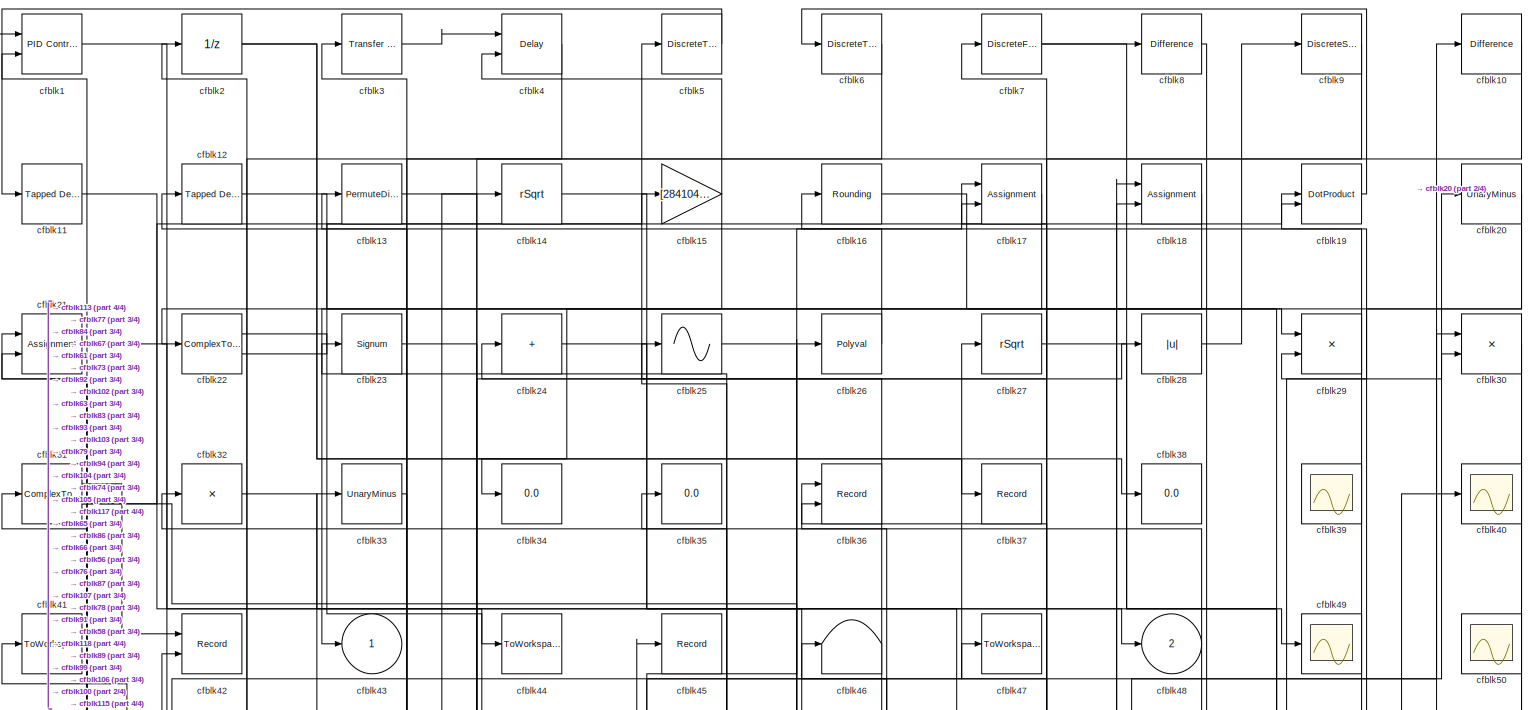
[diagram: root canvas - part 1/4, full width, top band]
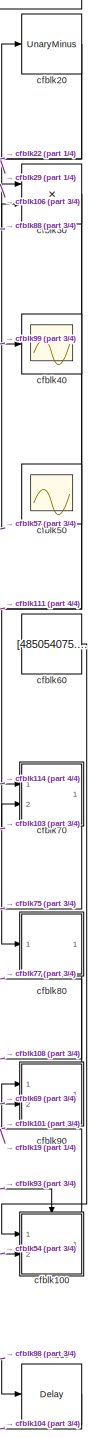
[diagram: root canvas - part 2/4, right side, full height]
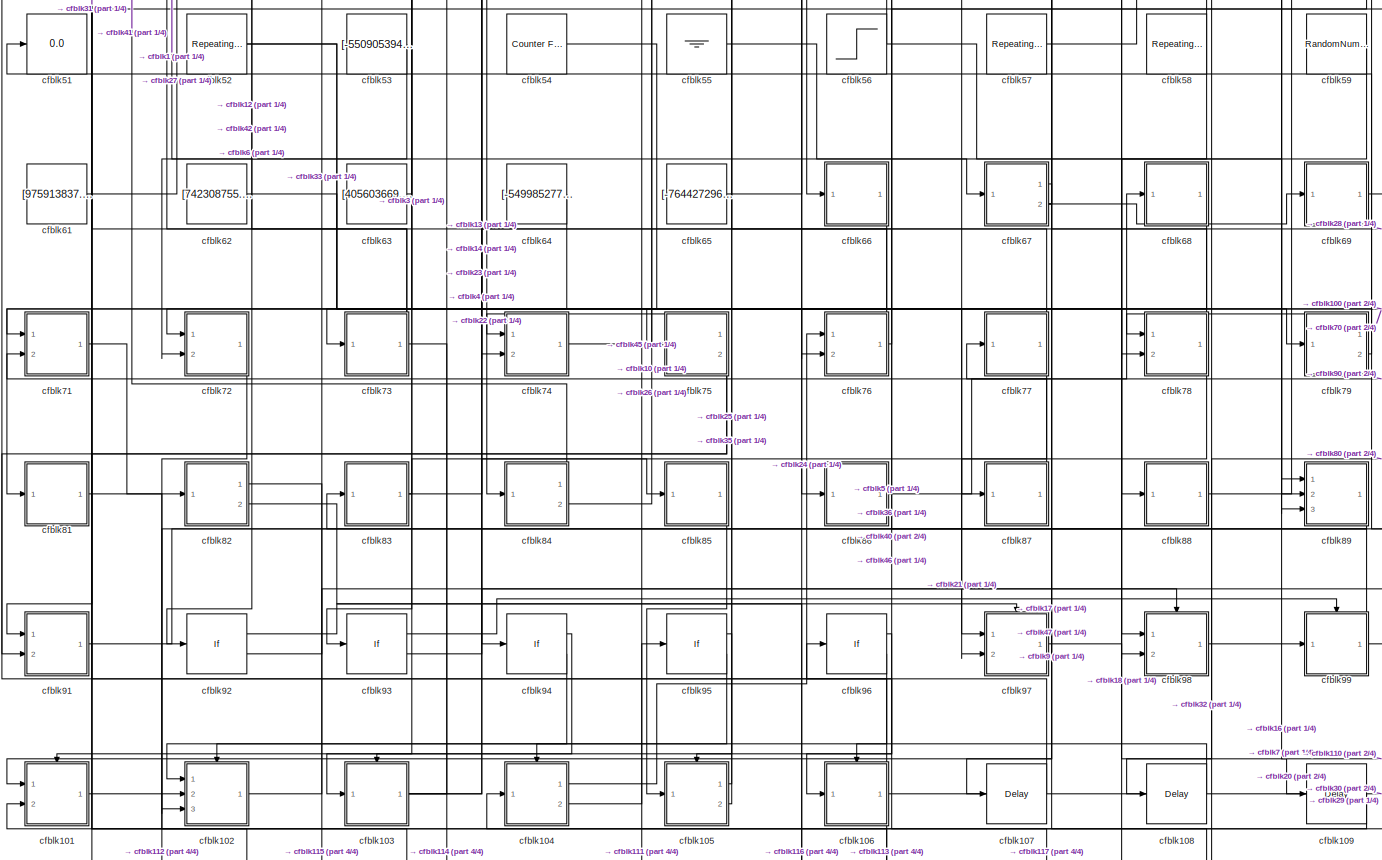
[diagram: root canvas - part 3/4, full width, bottom band]
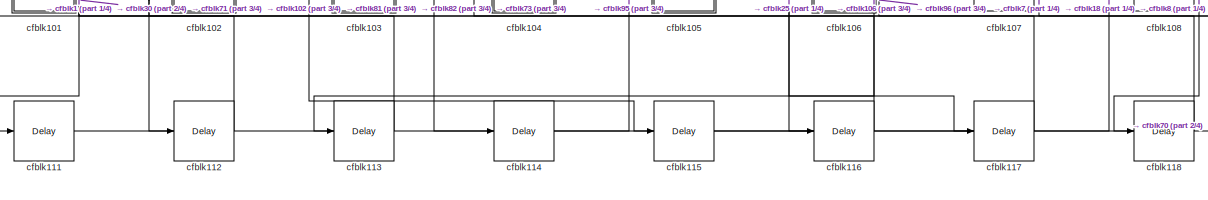
[diagram: root canvas - part 4/4, full width, bottom band]
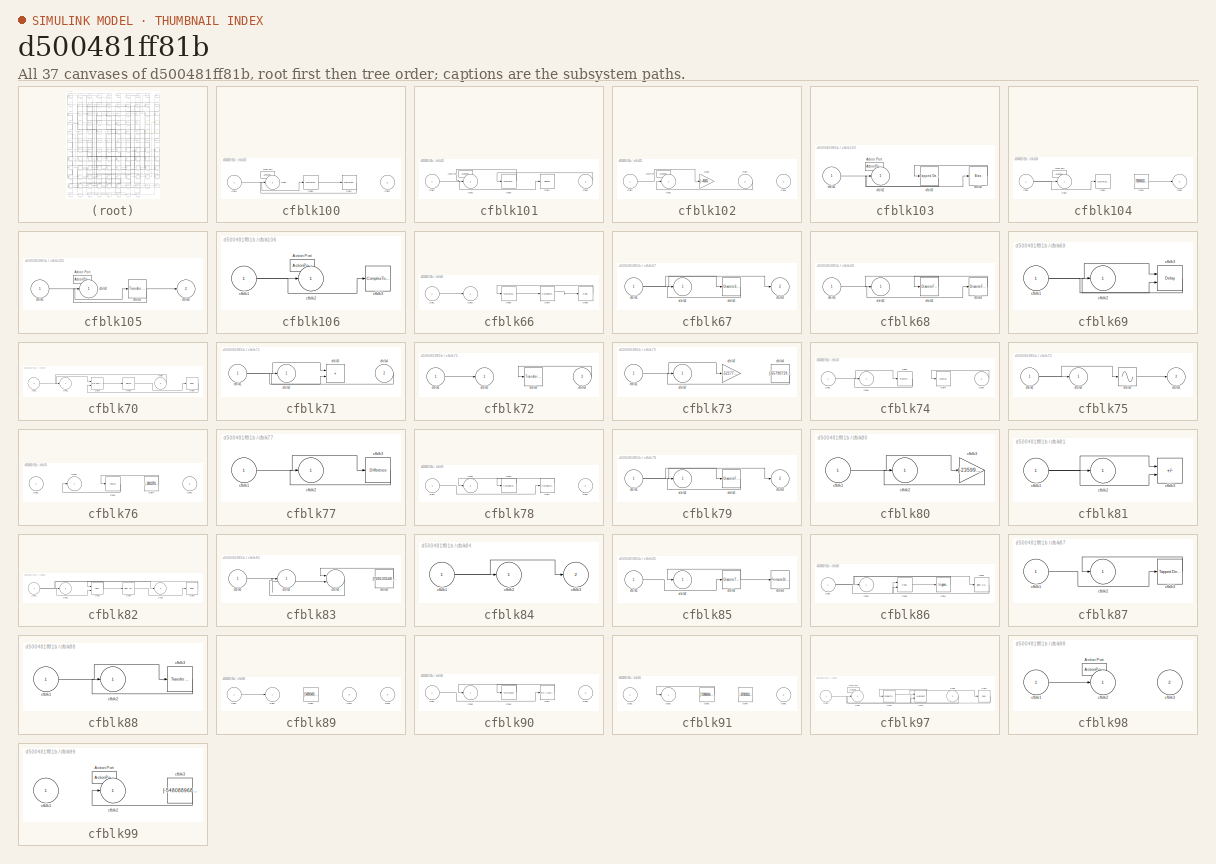
[diagram: thumbnail index - all 37 canvases of the model, root first then tree order]
MODEL slx_d500481ff81b
KIND model
CONFIG AbsTol = auto
CONFIG EnableMultiTasking = off
CONFIG FixedStep = auto
CONFIG MaxStep = auto
CONFIG MinStep = auto
CONFIG RelTol = 1e-3
CONFIG SampleTimeConstraint = Unconstrained
CONFIG SolverName = VariableStepAuto
CONFIG StartTime = 0.0
CONFIG StopTime = 10.0
BLOCK [Reference] cfblk1  REF=slpidlib/PID Controller (2DOF)
  Ports = [2, 1]
  SourceBlock = slpidlib/PID Controller (2DOF)
  SourceProductBaseCode = SL
  SourceType = PID 2dof
BLOCK [Reference] cfblk10  REF=simulink/Discrete/Difference
  Ports = [1, 1]
  SourceBlock = simulink/Discrete/Difference
  SourceProductBaseCode = SL
  SourceType = Difference
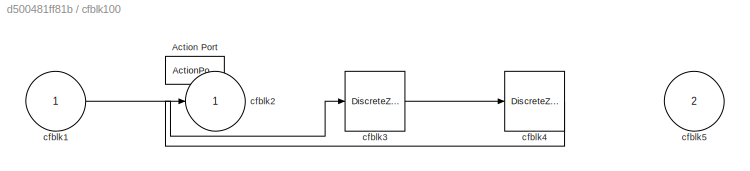
BLOCK [SubSystem] cfblk100
  Ports = [2, 1, 0, 0, 0, 0, 0, 1]
  RequestExecContextInheritance = off
  TreatAsAtomicUnit = on
BLOCK [ActionPort] cfblk100/Action Port
  ActionPortLabel = else
BLOCK [Inport] cfblk100/cfblk1
BLOCK [Outport] cfblk100/cfblk2
BLOCK [DiscreteZeroPole] cfblk100/cfblk3
  Gain = 1
  Poles = [0 0.5]
  SampleTime = -1
BLOCK [DiscreteZeroPole] cfblk100/cfblk4
  Gain = 1
  Poles = [0 0.5]
  SampleTime = -1
BLOCK [Inport] cfblk100/cfblk5
  Port = 2
BLOCK [SubSystem] cfblk101
  Ports = [2, 1, 0, 0, 0, 0, 0, 1]
  RequestExecContextInheritance = off
  TreatAsAtomicUnit = on
BLOCK [ActionPort] cfblk101/Action Port
  ActionPortLabel = if(u1 >= 0)
BLOCK [Inport] cfblk101/cfblk1
BLOCK [Outport] cfblk101/cfblk2
BLOCK [DiscreteIntegrator] cfblk101/cfblk3
  ICPrevOutput = DiscIntNeverNeededParam
  ICPrevScaledInput = DiscIntNeverNeededParam
  InitialConditionSetting = Auto
  Ports = [1, 1]
  SampleTime = -1
BLOCK [Signum] cfblk101/cfblk4
BLOCK [Inport] cfblk101/cfblk5
  Port = 2
BLOCK [SubSystem] cfblk102
  Ports = [3, 1, 0, 0, 0, 0, 0, 1]
  RequestExecContextInheritance = off
  TreatAsAtomicUnit = on
BLOCK [ActionPort] cfblk102/Action Port
  ActionPortLabel = else
BLOCK [Inport] cfblk102/cfblk1
BLOCK [Outport] cfblk102/cfblk2
BLOCK [Gain] cfblk102/cfblk3
  Gain = [-450032646.228763]
BLOCK [Inport] cfblk102/cfblk4
  Port = 2
BLOCK [Inport] cfblk102/cfblk5
  Port = 3
BLOCK [SubSystem] cfblk103
  Ports = [1, 1, 0, 0, 0, 0, 0, 1]
  RequestExecContextInheritance = off
  TreatAsAtomicUnit = on
BLOCK [ActionPort] cfblk103/Action Port
  ActionPortLabel = if(u1 >= 0)
BLOCK [Inport] cfblk103/cfblk1
BLOCK [Outport] cfblk103/cfblk2
BLOCK [Reference] cfblk103/cfblk3  REF=simulink/Discrete/Tapped Delay
  Ports = [1, 1]
  SourceBlock = simulink/Discrete/Tapped Delay
  SourceProductBaseCode = SL
  SourceType = Tapped Delay Line
BLOCK [Bias] cfblk103/cfblk4
  Bias = [661816639.716293]
  SaturateOnIntegerOverflow = off
BLOCK [SubSystem] cfblk104
  Ports = [1, 2, 0, 0, 0, 0, 0, 1]
  RequestExecContextInheritance = off
  TreatAsAtomicUnit = on
BLOCK [ActionPort] cfblk104/Action Port
  ActionPortLabel = else
BLOCK [Inport] cfblk104/cfblk1
BLOCK [Outport] cfblk104/cfblk2
BLOCK [DiscreteZeroPole] cfblk104/cfblk3
  Gain = 1
  Poles = [0 0.5]
  SampleTime = -1
BLOCK [Constant] cfblk104/cfblk4
  SampleTime = 1
  Value = [792065615.288515]
BLOCK [Outport] cfblk104/cfblk5
  Port = 2
BLOCK [SubSystem] cfblk105
  Ports = [1, 2, 0, 0, 0, 0, 0, 1]
  RequestExecContextInheritance = off
  TreatAsAtomicUnit = on
BLOCK [ActionPort] cfblk105/Action Port
  ActionPortLabel = if(u1 >= 0)
BLOCK [Inport] cfblk105/cfblk1
BLOCK [Outport] cfblk105/cfblk2
BLOCK [Reference] cfblk105/cfblk3  REF=simulink/Discrete/Transfer Fcn
First Order
  Ports = [1, 1]
  SourceBlock = simulink/Discrete/Transfer Fcn\nFirst Order
  SourceProductBaseCode = SL
  SourceType = First Order Transfer Fcn
BLOCK [Outport] cfblk105/cfblk4
  Port = 2
BLOCK [SubSystem] cfblk106
  Ports = [1, 1, 0, 0, 0, 0, 0, 1]
  RequestExecContextInheritance = off
  TreatAsAtomicUnit = on
BLOCK [ActionPort] cfblk106/Action Port
  ActionPortLabel = else
BLOCK [Inport] cfblk106/cfblk1
BLOCK [Outport] cfblk106/cfblk2
BLOCK [ComplexToMagnitudeAngle] cfblk106/cfblk3
  Ports = [1, 2]
BLOCK [Delay] cfblk107
  InputPortMap = u0
  Ports = [1, 1]
  SampleTime = 1
BLOCK [Delay] cfblk108
  InputPortMap = u0
  Ports = [1, 1]
  SampleTime = 1
BLOCK [Delay] cfblk109
  InputPortMap = u0
  Ports = [1, 1]
  SampleTime = 1
BLOCK [Reference] cfblk11  REF=simulink/Discrete/Tapped Delay
  Ports = [1, 1]
  SourceBlock = simulink/Discrete/Tapped Delay
  SourceProductBaseCode = SL
  SourceType = Tapped Delay Line
BLOCK [Delay] cfblk110
  InputPortMap = u0
  Ports = [1, 1]
  SampleTime = 1
BLOCK [Delay] cfblk111
  InputPortMap = u0
  Ports = [1, 1]
  SampleTime = 1
BLOCK [Delay] cfblk112
  InputPortMap = u0
  Ports = [1, 1]
  SampleTime = 1
BLOCK [Delay] cfblk113
  InputPortMap = u0
  Ports = [1, 1]
  SampleTime = 1
BLOCK [Delay] cfblk114
  InputPortMap = u0
  Ports = [1, 1]
  SampleTime = 1
BLOCK [Delay] cfblk115
  InputPortMap = u0
  Ports = [1, 1]
  SampleTime = 1
BLOCK [Delay] cfblk116
  InputPortMap = u0
  Ports = [1, 1]
  SampleTime = 1
BLOCK [Delay] cfblk117
  InputPortMap = u0
  Ports = [1, 1]
  SampleTime = 1
BLOCK [Delay] cfblk118
  InputPortMap = u0
  Ports = [1, 1]
  SampleTime = 1
BLOCK [Reference] cfblk12  REF=simulink/Discrete/Tapped Delay
  Ports = [1, 1]
  SourceBlock = simulink/Discrete/Tapped Delay
  SourceProductBaseCode = SL
  SourceType = Tapped Delay Line
BLOCK [PermuteDimensions] cfblk13
BLOCK [Sqrt] cfblk14
  AlgorithmType = Newton-Raphson
  Operator = rSqrt
BLOCK [Gain] cfblk15
  Gain = [28410411.029023]
BLOCK [Rounding] cfblk16
BLOCK [Assignment] cfblk17
  DiagnosticForDimensions = Warning
  IndexOptions = Index vector (dialog)
  Indices = 1
  OutputSizes = 1
  Ports = [2, 1]
BLOCK [Assignment] cfblk18
  DiagnosticForDimensions = Warning
  IndexOptions = Index vector (dialog)
  Indices = 1
  OutputSizes = 1
  Ports = [2, 1]
BLOCK [DotProduct] cfblk19
  OutDataTypeStr = Inherit: Inherit via internal rule
BLOCK [UnitDelay] cfblk2
  HasFrameUpgradeWarning = on
BLOCK [UnaryMinus] cfblk20
BLOCK [Assignment] cfblk21
  DiagnosticForDimensions = Warning
  IndexOptions = Index vector (dialog)
  Indices = 1
  OutputSizes = 1
  Ports = [2, 1]
BLOCK [ComplexToRealImag] cfblk22
  Ports = [1, 2]
BLOCK [Signum] cfblk23
BLOCK [Sum] cfblk24
  IconShape = rectangular
  Inputs = +
  Ports = [1, 1]
BLOCK [Sin] cfblk25
  Ports = [1, 1]
  SampleTime = 0
  TimeSource = Use external signal
BLOCK [Polyval] cfblk26
  Coefs = [ +2.081618890e-019, -1.441693666e-014, +4.719686976e-010, -8.536869453e-006, +1.621573104e-001, -8.087801117e+001 ]
BLOCK [Sqrt] cfblk27
  AlgorithmType = Newton-Raphson
  Operator = rSqrt
BLOCK [Abs] cfblk28
  SaturateOnIntegerOverflow = off
BLOCK [Product] cfblk29
  Inputs = **
  Ports = [2, 1]
BLOCK [Reference] cfblk3  REF=simulink/Discrete/Transfer Fcn
Real Zero
  Ports = [1, 1]
  SourceBlock = simulink/Discrete/Transfer Fcn\nReal Zero
  SourceProductBaseCode = SL
  SourceType = Transfer Fcn Real Zero
BLOCK [Product] cfblk30
  Ports = [2, 1]
BLOCK [ComplexToRealImag] cfblk31
  Ports = [1, 2]
BLOCK [Product] cfblk32
  Inputs = *
  Ports = [1, 1]
BLOCK [UnaryMinus] cfblk33
BLOCK [Display] cfblk34
  Decimation = 1
  Ports = [1]
BLOCK [Display] cfblk35
  Decimation = 1
  Ports = [1]
BLOCK [Record] cfblk36
  CompatibilityTag = XY
  FileSettingsInternal = {"entries":[{"content":{"excelSettings":{"content":{},"type":"Streamout.ExcelSettings"}},"type":"Streamout.FileSettingStorage","uuid":"dc4603f7-060f-47ee-a389-6b2f5d8eacf3"}],"packageUris":["http://schema.mathworks.com/mf0/streamout_blocks/R2020a"],"version":"1.0"}
  Layout = [1 1]
  Ports = [2]
  SignalsInternal = {"entries":[{"content":{"signals":[{"content":{"blockPath":["sampleModel135/cfblk36"],"channel":[],"dimensions":[1],"domain":"sampleModel135/cfblk36","lineColor":"#a2142f","plots":[1],"port":1,"sid":[""],"signalID":4712,"signalName":"cfblk76"},"type":"RecordBlkView.Signal","uuid":"88f8ffe8-7962-43a1-8896-d692d2f87f4c"},{"content":{"blockPath":["sampleModel135/cfblk36"],"channel":[],"dimensions":[1...<+385ch>
  VisualizationBindings = {"xyplotplugin":{"info":[{"series":[{"bindingParametersList":[{"parameter":"X-Axis","signalID":4712,"signalName":"cfblk76"},{"parameter":"Y-Axis","signalID":4716,"signalName":"cfblk67:2"}],"seriesID":6412}],"subplotID":1}]}}
BLOCK [Record] cfblk37
  FileSettingsInternal = {"entries":[{"content":{"excelSettings":{"content":{},"type":"Streamout.ExcelSettings"}},"type":"Streamout.FileSettingStorage","uuid":"5de6cc85-0c80-4659-8aff-d8a8f7568a02"}],"packageUris":["http://schema.mathworks.com/mf0/streamout_blocks/R2020a"],"version":"1.0"}
  Ports = [1]
  SignalsInternal = {"entries":[{"content":{"signals":[{"content":{"blockPath":["sampleModel135/cfblk37"],"channel":[],"dimensions":[1],"domain":"sampleModel135/cfblk37","lineColor":"#a2142f","plots":[1],"port":1,"sid":[""],"signalID":4720,"signalName":"cfblk2"},"type":"RecordBlkView.Signal","uuid":"9ad653bb-3f93-4fe3-8d88-ee341a26a170"}]},"type":"RecordBlkView.InputSignals","uuid":"e2ea3720-dc8c-4658-944f-b29d6f1fb9...<+96ch>
  VisualizationBindings = {"sparklinesplugin":{"info":[{"bindingParametersList":[],"subplotID":1}]}}
BLOCK [Display] cfblk38
  Decimation = 1
  Ports = [1]
BLOCK [Scope] cfblk39
  Floating = on
  NumInputPorts = 1
  Ports = []
BLOCK [Delay] cfblk4
  InputPortMap = u0,e6
  Ports = [2, 1]
  SampleTime = 1
  ShowEnablePort = on
BLOCK [Scope] cfblk40
  Floating = off
  NumInputPorts = 1
  Ports = [1]
BLOCK [ToWorkspace] cfblk41
  FixptAsFi = on
  MaxDataPoints = inf
  Ports = [1]
  SampleTime = -1
  SaveFormat = Timeseries
  VariableName = rmtcdss
BLOCK [Record] cfblk42
  CompatibilityTag = XY
  FileSettingsInternal = {"entries":[{"content":{"excelSettings":{"content":{},"type":"Streamout.ExcelSettings"}},"type":"Streamout.FileSettingStorage","uuid":"3a613f90-b4b9-4c61-961a-fdb05aa120f1"}],"packageUris":["http://schema.mathworks.com/mf0/streamout_blocks/R2020a"],"version":"1.0"}
  Layout = [1 1]
  Ports = [2]
  SignalsInternal = {"entries":[{"content":{"signals":[{"content":{"blockPath":["sampleModel135/cfblk42"],"channel":[],"dimensions":[1],"domain":"sampleModel135/cfblk42","lineColor":"#a2142f","plots":[1],"port":1,"sid":[""],"signalID":4724,"signalName":"cfblk31:1"},"type":"RecordBlkView.Signal","uuid":"ce349fb7-b3a0-4447-98f3-427877e07b8c"},{"content":{"blockPath":["sampleModel135/cfblk42"],"channel":[],"dimensions":...<+385ch>
  VisualizationBindings = {"xyplotplugin":{"info":[{"series":[{"bindingParametersList":[{"parameter":"X-Axis","signalID":4724,"signalName":"cfblk31:1"},{"parameter":"Y-Axis","signalID":4728,"signalName":"cfblk73"}],"seriesID":39813}],"subplotID":1}]}}
BLOCK [Outport] cfblk43
BLOCK [ToWorkspace] cfblk44
  FixptAsFi = on
  MaxDataPoints = inf
  Ports = [1]
  SampleTime = -1
  SaveFormat = Timeseries
  VariableName = wimrcuv
BLOCK [Record] cfblk45
  FileSettingsInternal = {"entries":[{"content":{"excelSettings":{"content":{},"type":"Streamout.ExcelSettings"}},"type":"Streamout.FileSettingStorage","uuid":"b06d5a54-4607-4223-bf0d-fc84dbd604d8"}],"packageUris":["http://schema.mathworks.com/mf0/streamout_blocks/R2020a"],"version":"1.0"}
  Ports = [1]
  SignalsInternal = {"entries":[{"content":{"signals":[{"content":{"blockPath":["sampleModel135/cfblk45"],"channel":[],"dimensions":[1],"domain":"sampleModel135/cfblk45","lineColor":"#b746ff","plots":[1],"port":1,"sid":[""],"signalID":4732,"signalName":"cfblk104:2"},"type":"RecordBlkView.Signal","uuid":"831cb24a-ecf3-4b9e-81f9-60f1a74fc749"}]},"type":"RecordBlkView.InputSignals","uuid":"5b04a1d9-3887-4891-afc8-c46e7e...<+100ch>
  VisualizationBindings = {"sparklinesplugin":{"info":[{"bindingParametersList":[],"subplotID":1}]}}
BLOCK [Terminator] cfblk46
BLOCK [ToWorkspace] cfblk47
  FixptAsFi = on
  MaxDataPoints = inf
  Ports = [1]
  SampleTime = -1
  SaveFormat = Timeseries
  VariableName = mjyfcoe
BLOCK [Outport] cfblk48
  Port = 2
BLOCK [Scope] cfblk49
  Floating = off
  NumInputPorts = 1
  Ports = [1]
BLOCK [DiscreteTransferFcn] cfblk5
  InputPortMap = u0
  Ports = [1, 1]
  SampleTime = 1
BLOCK [Scope] cfblk50
  Floating = on
  NumInputPorts = 1
  Ports = []
BLOCK [Display] cfblk51
  Decimation = 1
  Ports = [1]
BLOCK [Reference] cfblk52  REF=simulink/Sources/Repeating
Sequence
  Ports = [0, 1]
  SourceBlock = simulink/Sources/Repeating\nSequence
  SourceProductBaseCode = SL
  SourceType = Repeating table
BLOCK [Constant] cfblk53
  SampleTime = 1
  Value = [-550905394.048461]
BLOCK [Reference] cfblk54  REF=simulink/Sources/Counter
Free-Running
  Ports = [0, 1]
  SourceBlock = simulink/Sources/Counter\nFree-Running
  SourceProductBaseCode = SL
  SourceType = Counter Free-Running
BLOCK [Ground] cfblk55
BLOCK [Step] cfblk56
  After = [-347251148.629385]
  Before = [-595461991.186605]
  SampleTime = 0
  Time = [24.000000]
BLOCK [Reference] cfblk57  REF=simulink/Sources/Repeating
Sequence
Interpolated
  Ports = [0, 1]
  SourceBlock = simulink/Sources/Repeating\nSequence\nInterpolated
  SourceProductBaseCode = SL
  SourceType = Repeating Sequence Interpolated
BLOCK [Reference] cfblk58  REF=simulink/Sources/Repeating
Sequence
Interpolated
  Ports = [0, 1]
  SourceBlock = simulink/Sources/Repeating\nSequence\nInterpolated
  SourceProductBaseCode = SL
  SourceType = Repeating Sequence Interpolated
BLOCK [RandomNumber] cfblk59
  Mean = [72182.026536]
  SampleTime = 0.1
  Seed = [307408944.000000]
  Variance = [16955.399432]
BLOCK [DiscreteTransferFcn] cfblk6
  InputPortMap = u0
  Ports = [1, 1]
  SampleTime = 1
BLOCK [Constant] cfblk60
  SampleTime = 1
  Value = [485054075.838983]
BLOCK [Constant] cfblk61
  SampleTime = 1
  Value = [975913837.583601]
BLOCK [Constant] cfblk62
  SampleTime = 1
  Value = [742308755.101117]
BLOCK [Constant] cfblk63
  SampleTime = 1
  Value = [405603669.159566]
BLOCK [Constant] cfblk64
  SampleTime = 1
  Value = [-549985277.740868]
BLOCK [Constant] cfblk65
  SampleTime = 1
  Value = [-764427296.549902]
BLOCK [SubSystem] cfblk66
  Ports = [1, 1]
  RequestExecContextInheritance = off
BLOCK [Inport] cfblk66/cfblk1
BLOCK [Outport] cfblk66/cfblk2
BLOCK [DiscreteStateSpace] cfblk66/cfblk3
BLOCK [ComplexToRealImag] cfblk66/cfblk4
  Ports = [1, 2]
BLOCK [Delay] cfblk66/cfblk5
  InputPortMap = u0
  Ports = [1, 1]
  SampleTime = 1
BLOCK [SubSystem] cfblk67
  Ports = [1, 2]
  RequestExecContextInheritance = off
BLOCK [Inport] cfblk67/cfblk1
BLOCK [Outport] cfblk67/cfblk2
BLOCK [DiscreteStateSpace] cfblk67/cfblk3
BLOCK [Outport] cfblk67/cfblk4
  Port = 2
BLOCK [SubSystem] cfblk68
  Ports = [1, 1]
  RequestExecContextInheritance = off
BLOCK [Inport] cfblk68/cfblk1
BLOCK [Outport] cfblk68/cfblk2
BLOCK [DiscreteFilter] cfblk68/cfblk3
  InputPortMap = u0
  Ports = [1, 1]
  SampleTime = 1
BLOCK [DiscreteFilter] cfblk68/cfblk4
  InputPortMap = u0
  Ports = [1, 1]
  SampleTime = 1
BLOCK [SubSystem] cfblk69
  Ports = [1, 1]
  RequestExecContextInheritance = off
BLOCK [Inport] cfblk69/cfblk1
BLOCK [Outport] cfblk69/cfblk2
BLOCK [Delay] cfblk69/cfblk3
  DelayLengthSource = Input port
  InputPortMap = u0,p1
  Ports = [2, 1]
  SampleTime = 1
BLOCK [DiscreteFilter] cfblk7
  InputPortMap = u0
  Ports = [1, 1]
  SampleTime = 1
BLOCK [SubSystem] cfblk70
  Ports = [2, 1]
  RequestExecContextInheritance = off
BLOCK [Inport] cfblk70/cfblk1
BLOCK [Outport] cfblk70/cfblk2
BLOCK [Reference] cfblk70/cfblk3  REF=slpidlib/PID Controller (2DOF)
  Ports = [2, 1]
  SourceBlock = slpidlib/PID Controller (2DOF)
  SourceProductBaseCode = SL
  SourceType = PID 2dof
BLOCK [Signum] cfblk70/cfblk4
BLOCK [Inport] cfblk70/cfblk5
  Port = 2
BLOCK [Delay] cfblk70/cfblk6
  InputPortMap = u0
  Ports = [1, 1]
  SampleTime = 1
BLOCK [SubSystem] cfblk71
  Ports = [2, 1]
  RequestExecContextInheritance = off
BLOCK [Inport] cfblk71/cfblk1
BLOCK [Outport] cfblk71/cfblk2
BLOCK [Product] cfblk71/cfblk3
  Ports = [2, 1]
BLOCK [Inport] cfblk71/cfblk4
  Port = 2
BLOCK [SubSystem] cfblk72
  Ports = [2, 1]
  RequestExecContextInheritance = off
BLOCK [Inport] cfblk72/cfblk1
BLOCK [Outport] cfblk72/cfblk2
BLOCK [Reference] cfblk72/cfblk3  REF=simulink/Discrete/Transfer Fcn
Real Zero
  Ports = [1, 1]
  SourceBlock = simulink/Discrete/Transfer Fcn\nReal Zero
  SourceProductBaseCode = SL
  SourceType = Transfer Fcn Real Zero
BLOCK [Inport] cfblk72/cfblk4
  Port = 2
BLOCK [SubSystem] cfblk73
  Ports = [1, 1]
  RequestExecContextInheritance = off
BLOCK [Inport] cfblk73/cfblk1
BLOCK [Outport] cfblk73/cfblk2
BLOCK [Gain] cfblk73/cfblk3
  Gain = [-521772301.207292]
BLOCK [Constant] cfblk73/cfblk4
  SampleTime = 1
  Value = [-65790719.419263]
BLOCK [SubSystem] cfblk74
  Ports = [2, 1]
  RequestExecContextInheritance = off
BLOCK [Inport] cfblk74/cfblk1
BLOCK [Outport] cfblk74/cfblk2
BLOCK [Reference] cfblk74/cfblk3  REF=simulink/Discrete/Transfer Fcn
Lead or Lag
  Ports = [1, 1]
  SourceBlock = simulink/Discrete/Transfer Fcn\nLead or Lag
  SourceProductBaseCode = SL
  SourceType = Lead or Lag Compensator
BLOCK [MinMax] cfblk74/cfblk4
  Ports = [1, 1]
BLOCK [Inport] cfblk74/cfblk5
  Port = 2
BLOCK [SubSystem] cfblk75
  Ports = [1, 2]
  RequestExecContextInheritance = off
BLOCK [Inport] cfblk75/cfblk1
BLOCK [Outport] cfblk75/cfblk2
BLOCK [Sin] cfblk75/cfblk3
  Ports = [1, 1]
  SampleTime = 0
  TimeSource = Use external signal
BLOCK [Outport] cfblk75/cfblk4
  Port = 2
BLOCK [SubSystem] cfblk76
  Ports = [2, 1]
  RequestExecContextInheritance = off
BLOCK [Inport] cfblk76/cfblk1
BLOCK [Outport] cfblk76/cfblk2
BLOCK [Polyval] cfblk76/cfblk3
  Coefs = [ +2.081618890e-019, -1.441693666e-014, +4.719686976e-010, -8.536869453e-006, +1.621573104e-001, -8.087801117e+001 ]
BLOCK [Constant] cfblk76/cfblk4
  SampleTime = 1
  Value = [-338113701.827944]
BLOCK [Inport] cfblk76/cfblk5
  Port = 2
BLOCK [SubSystem] cfblk77
  Ports = [1, 1]
  RequestExecContextInheritance = off
BLOCK [Inport] cfblk77/cfblk1
BLOCK [Outport] cfblk77/cfblk2
BLOCK [Reference] cfblk77/cfblk3  REF=simulink/Discrete/Difference
  Ports = [1, 1]
  SourceBlock = simulink/Discrete/Difference
  SourceProductBaseCode = SL
  SourceType = Difference
BLOCK [SubSystem] cfblk78
  Ports = [2, 1]
  RequestExecContextInheritance = off
BLOCK [Inport] cfblk78/cfblk1
BLOCK [Outport] cfblk78/cfblk2
BLOCK [ComplexToRealImag] cfblk78/cfblk3
  Ports = [1, 2]
BLOCK [ComplexToMagnitudeAngle] cfblk78/cfblk4
  Ports = [1, 2]
BLOCK [Inport] cfblk78/cfblk5
  Port = 2
BLOCK [SubSystem] cfblk79
  Ports = [1, 2]
  RequestExecContextInheritance = off
BLOCK [Inport] cfblk79/cfblk1
BLOCK [Outport] cfblk79/cfblk2
BLOCK [DiscreteFir] cfblk79/cfblk3
  InputPortMap = u0
  OutputPortMap = o0
  Ports = [1, 1]
  SampleTime = 1
BLOCK [Outport] cfblk79/cfblk4
  Port = 2
BLOCK [Reference] cfblk8  REF=simulink/Discrete/Difference
  Ports = [1, 1]
  SourceBlock = simulink/Discrete/Difference
  SourceProductBaseCode = SL
  SourceType = Difference
BLOCK [SubSystem] cfblk80
  Ports = [1, 1]
  RequestExecContextInheritance = off
BLOCK [Inport] cfblk80/cfblk1
BLOCK [Outport] cfblk80/cfblk2
BLOCK [Gain] cfblk80/cfblk3
  Gain = [-235992841.501471]
BLOCK [SubSystem] cfblk81
  Ports = [1, 1]
  RequestExecContextInheritance = off
BLOCK [Inport] cfblk81/cfblk1
BLOCK [Outport] cfblk81/cfblk2
BLOCK [Sum] cfblk81/cfblk3
  IconShape = rectangular
  Inputs = +-
  Ports = [2, 1]
BLOCK [SubSystem] cfblk82
  Ports = [1, 2]
  RequestExecContextInheritance = off
BLOCK [Inport] cfblk82/cfblk1
BLOCK [Outport] cfblk82/cfblk2
BLOCK [Delay] cfblk82/cfblk3
  DelayLengthSource = Input port
  InputPortMap = u0,p1
  Ports = [2, 1]
  SampleTime = 1
BLOCK [Reference] cfblk82/cfblk4  REF=simulink/Math
Operations/Slider
Gain
  Ports = [1, 1]
  SourceBlock = simulink/Math\nOperations/Slider\nGain
  SourceProductBaseCode = SL
  SourceType = Slider Gain
BLOCK [Outport] cfblk82/cfblk5
  Port = 2
BLOCK [Delay] cfblk82/cfblk6
  InputPortMap = u0
  Ports = [1, 1]
  SampleTime = 1
BLOCK [SubSystem] cfblk83
  Ports = [1, 1]
  RequestExecContextInheritance = off
BLOCK [Inport] cfblk83/cfblk1
BLOCK [Outport] cfblk83/cfblk2
BLOCK [Sum] cfblk83/cfblk3
  Inputs = |++
  Ports = [2, 1]
BLOCK [Constant] cfblk83/cfblk4
  SampleTime = 1
  Value = [749133548.970775]
BLOCK [SubSystem] cfblk84
  Ports = [1, 2]
  RequestExecContextInheritance = off
BLOCK [Inport] cfblk84/cfblk1
BLOCK [Outport] cfblk84/cfblk2
BLOCK [Outport] cfblk84/cfblk3
  Port = 2
BLOCK [SubSystem] cfblk85
  Ports = [1, 1]
  RequestExecContextInheritance = off
BLOCK [Inport] cfblk85/cfblk1
BLOCK [Outport] cfblk85/cfblk2
BLOCK [DiscreteTransferFcn] cfblk85/cfblk3
  InputPortMap = u0
  Ports = [1, 1]
  SampleTime = 1
BLOCK [PermuteDimensions] cfblk85/cfblk4
BLOCK [SubSystem] cfblk86
  Ports = [1, 1]
  RequestExecContextInheritance = off
BLOCK [Inport] cfblk86/cfblk1
BLOCK [Outport] cfblk86/cfblk2
BLOCK [Delay] cfblk86/cfblk3
  DelayLengthSource = Input port
  InputPortMap = u0,p1
  Ports = [2, 1]
  SampleTime = 1
BLOCK [Trigonometry] cfblk86/cfblk4
  Ports = [1, 1]
BLOCK [Reference] cfblk86/cfblk5  REF=simulink/Math
Operations/Slider
Gain
  Ports = [1, 1]
  SourceBlock = simulink/Math\nOperations/Slider\nGain
  SourceProductBaseCode = SL
  SourceType = Slider Gain
BLOCK [SubSystem] cfblk87
  Ports = [1, 1]
  RequestExecContextInheritance = off
BLOCK [Inport] cfblk87/cfblk1
BLOCK [Outport] cfblk87/cfblk2
BLOCK [Reference] cfblk87/cfblk3  REF=simulink/Discrete/Tapped Delay
  Ports = [1, 1]
  SourceBlock = simulink/Discrete/Tapped Delay
  SourceProductBaseCode = SL
  SourceType = Tapped Delay Line
BLOCK [SubSystem] cfblk88
  Ports = [1, 1]
  RequestExecContextInheritance = off
BLOCK [Inport] cfblk88/cfblk1
BLOCK [Outport] cfblk88/cfblk2
BLOCK [Reference] cfblk88/cfblk3  REF=simulink/Discrete/Transfer Fcn
Real Zero
  Ports = [1, 1]
  SourceBlock = simulink/Discrete/Transfer Fcn\nReal Zero
  SourceProductBaseCode = SL
  SourceType = Transfer Fcn Real Zero
BLOCK [SubSystem] cfblk89
  Ports = [3, 1]
  RequestExecContextInheritance = off
BLOCK [Inport] cfblk89/cfblk1
BLOCK [Outport] cfblk89/cfblk2
BLOCK [Constant] cfblk89/cfblk3
  SampleTime = 1
  Value = [548910403.569160]
BLOCK [Inport] cfblk89/cfblk4
  Port = 2
BLOCK [Inport] cfblk89/cfblk5
  Port = 3
BLOCK [DiscreteStateSpace] cfblk9
BLOCK [SubSystem] cfblk90
  Ports = [2, 1]
  RequestExecContextInheritance = off
BLOCK [Inport] cfblk90/cfblk1
BLOCK [Outport] cfblk90/cfblk2
BLOCK [Reference] cfblk90/cfblk3  REF=simulink/Discrete/Difference
  Ports = [1, 1]
  SourceBlock = simulink/Discrete/Difference
  SourceProductBaseCode = SL
  SourceType = Difference
BLOCK [Reference] cfblk90/cfblk4  REF=slpidlib/PID Controller
  Ports = [1, 1]
  SourceBlock = slpidlib/PID Controller
  SourceProductBaseCode = SL
  SourceType = PID 1dof
BLOCK [Inport] cfblk90/cfblk5
  Port = 2
BLOCK [SubSystem] cfblk91
  Ports = [2, 1]
  RequestExecContextInheritance = off
BLOCK [Inport] cfblk91/cfblk1
BLOCK [Outport] cfblk91/cfblk2
BLOCK [Constant] cfblk91/cfblk3
  SampleTime = 1
  Value = [710884166.295395]
BLOCK [Constant] cfblk91/cfblk4
  SampleTime = 1
  Value = [-397403311.227990]
BLOCK [Inport] cfblk91/cfblk5
  Port = 2
BLOCK [If] cfblk92
  IfExpression = u1 >= 0
  Ports = [1, 2]
  SampleTime = 1
BLOCK [If] cfblk93
  IfExpression = u1 >= 0
  Ports = [1, 2]
  SampleTime = 1
BLOCK [If] cfblk94
  IfExpression = u1 >= 0
  Ports = [1, 2]
  SampleTime = 1
BLOCK [If] cfblk95
  IfExpression = u1 >= 0
  Ports = [1, 2]
  SampleTime = 1
BLOCK [If] cfblk96
  IfExpression = u1 >= 0
  Ports = [1, 2]
  SampleTime = 1
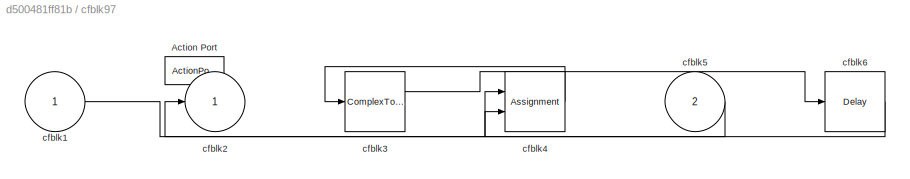
BLOCK [SubSystem] cfblk97
  Ports = [2, 1, 0, 0, 0, 0, 0, 1]
  RequestExecContextInheritance = off
  TreatAsAtomicUnit = on
BLOCK [ActionPort] cfblk97/Action Port
  ActionPortLabel = if(u1 >= 0)
BLOCK [Inport] cfblk97/cfblk1
BLOCK [Outport] cfblk97/cfblk2
BLOCK [ComplexToMagnitudeAngle] cfblk97/cfblk3
  Ports = [1, 2]
BLOCK [Assignment] cfblk97/cfblk4
  DiagnosticForDimensions = Warning
  IndexOptions = Index vector (dialog)
  Indices = 1
  OutputSizes = 1
  Ports = [2, 1]
BLOCK [Inport] cfblk97/cfblk5
  Port = 2
BLOCK [Delay] cfblk97/cfblk6
  InputPortMap = u0
  Ports = [1, 1]
BLOCK [SubSystem] cfblk98
  Ports = [2, 1, 0, 0, 0, 0, 0, 1]
  RequestExecContextInheritance = off
  TreatAsAtomicUnit = on
BLOCK [ActionPort] cfblk98/Action Port
  ActionPortLabel = else
BLOCK [Inport] cfblk98/cfblk1
BLOCK [Outport] cfblk98/cfblk2
BLOCK [Inport] cfblk98/cfblk3
  Port = 2
BLOCK [SubSystem] cfblk99
  Ports = [1, 1, 0, 0, 0, 0, 0, 1]
  RequestExecContextInheritance = off
  TreatAsAtomicUnit = on
BLOCK [ActionPort] cfblk99/Action Port
  ActionPortLabel = if(u1 >= 0)
BLOCK [Inport] cfblk99/cfblk1
BLOCK [Outport] cfblk99/cfblk2
BLOCK [Constant] cfblk99/cfblk3
  SampleTime = 1
  Value = [-548088968.937660]
LINE cfblk100/cfblk1:1 -> cfblk100/cfblk3:1
LINE cfblk100/cfblk3:1 -> cfblk100/cfblk4:1
LINE cfblk100/cfblk4:1 -> cfblk100/cfblk2:1
LINE cfblk100:1 -> cfblk19:1
LINE cfblk101/cfblk1:1 -> cfblk101/cfblk4:1
LINE cfblk101/cfblk3:1 -> cfblk101/cfblk2:1
LINE cfblk101/cfblk5:1 -> cfblk101/cfblk3:1
LINE cfblk101:1 -> cfblk90:1
LINE cfblk102/cfblk1:1 -> cfblk102/cfblk3:1
LINE cfblk102/cfblk4:1 -> cfblk102/cfblk2:1
LINE cfblk102:1 -> cfblk33:1
LINE cfblk103/cfblk1:1 -> cfblk103/cfblk4:1
LINE cfblk103/cfblk3:1 -> cfblk103/cfblk2:1
LINE cfblk103/cfblk4:1 -> cfblk103/cfblk3:1
NET cfblk103:1 -> cfblk14:1, cfblk28:1, cfblk70:2
NET cfblk104/cfblk1:1 -> cfblk104/cfblk2:1, cfblk104/cfblk3:1
LINE cfblk104/cfblk4:1 -> cfblk104/cfblk5:1
LINE cfblk104:1 -> cfblk76:1
LINE cfblk104:2 -> cfblk45:1
LINE cfblk105/cfblk1:1 -> cfblk105/cfblk3:1
NET cfblk105/cfblk3:1 -> cfblk105/cfblk2:1, cfblk105/cfblk4:1
LINE cfblk105:1 -> cfblk25:1
LINE cfblk105:2 -> cfblk23:1
NET cfblk106/cfblk1:1 -> cfblk106/cfblk2:1, cfblk106/cfblk3:1
NET cfblk106:1 -> cfblk113:1, cfblk21:1, cfblk30:1
LINE cfblk107:1 -> cfblk1:1
LINE cfblk108:1 -> cfblk102:1
LINE cfblk109:1 -> cfblk101:2
LINE cfblk10:1 -> cfblk73:1
LINE cfblk110:1 -> cfblk104:1
LINE cfblk111:1 -> cfblk95:1
LINE cfblk112:1 -> cfblk102:2
LINE cfblk113:1 -> cfblk1:2
LINE cfblk114:1 -> cfblk70:1
LINE cfblk115:1 -> cfblk18:2
LINE cfblk116:1 -> cfblk71:2
LINE cfblk117:1 -> cfblk96:1
LINE cfblk118:1 -> cfblk7:1
LINE cfblk11:1 -> cfblk44:1
LINE cfblk12:1 -> cfblk29:1
LINE cfblk13:1 -> cfblk94:1
LINE cfblk14:1 -> cfblk48:1
NET cfblk15:1 -> cfblk34:1, cfblk4:2
LINE cfblk16:1 -> cfblk99:1
LINE cfblk17:1 -> cfblk43:1
LINE cfblk18:1 -> cfblk24:1
LINE cfblk19:1 -> cfblk6:1
LINE cfblk1:1 -> cfblk67:1
NET cfblk20:1 -> cfblk22:1, cfblk29:2
LINE cfblk21:1 -> cfblk87:1
LINE cfblk22:1 -> cfblk84:1
LINE cfblk22:2 -> cfblk15:1
LINE cfblk23:1 -> cfblk79:1
LINE cfblk24:1 -> cfblk66:1
LINE cfblk25:1 -> cfblk117:1
LINE cfblk26:1 -> cfblk2:1
LINE cfblk27:1 -> cfblk89:1
LINE cfblk28:1 -> cfblk9:1
NET cfblk29:1 -> cfblk106:1, cfblk16:1
NET cfblk2:1 -> cfblk37:1, cfblk38:1
NET cfblk30:1 -> cfblk111:1, cfblk80:1
LINE cfblk31:1 -> cfblk42:1
NET cfblk31:2 -> cfblk19:2, cfblk86:1
LINE cfblk32:1 -> cfblk49:1
LINE cfblk33:1 -> cfblk93:1
LINE cfblk3:1 -> cfblk4:1
LINE cfblk4:1 -> cfblk74:2
NET cfblk52:1 -> cfblk76:2, cfblk98:1
LINE cfblk53:1 -> cfblk72:2
LINE cfblk54:1 -> cfblk100:2
LINE cfblk55:1 -> cfblk88:1
NET cfblk56:1 -> cfblk5:1, cfblk89:3
LINE cfblk57:1 -> cfblk30:2
NET cfblk58:1 -> cfblk32:1, cfblk98:2
LINE cfblk59:1 -> cfblk78:2
LINE cfblk5:1 -> cfblk11:1
LINE cfblk60:1 -> cfblk100:1
LINE cfblk61:1 -> cfblk27:1
LINE cfblk62:1 -> cfblk97:1
LINE cfblk63:1 -> cfblk13:1
LINE cfblk64:1 -> cfblk72:1
LINE cfblk65:1 -> cfblk17:1
LINE cfblk66/cfblk1:1 -> cfblk66/cfblk2:1
LINE cfblk66/cfblk3:1 -> cfblk66/cfblk4:1
LINE cfblk66/cfblk4:1 -> cfblk66/cfblk5:1
LINE cfblk66/cfblk5:1 -> cfblk66/cfblk3:1
LINE cfblk66:1 -> cfblk71:1
NET cfblk67/cfblk1:1 -> cfblk67/cfblk3:1, cfblk67/cfblk4:1
LINE cfblk67/cfblk3:1 -> cfblk67/cfblk2:1
LINE cfblk67:1 -> cfblk101:1
NET cfblk67:2 -> cfblk17:2, cfblk36:2, cfblk69:1
LINE cfblk68/cfblk1:1 -> cfblk68/cfblk4:1
LINE cfblk68/cfblk3:1 -> cfblk68/cfblk2:1
LINE cfblk68/cfblk4:1 -> cfblk68/cfblk3:1
LINE cfblk68:1 -> cfblk81:1
NET cfblk69/cfblk1:1 -> cfblk69/cfblk3:1, cfblk69/cfblk3:2
LINE cfblk69/cfblk3:1 -> cfblk69/cfblk2:1
LINE cfblk69:1 -> cfblk90:2
LINE cfblk6:1 -> cfblk92:1
LINE cfblk70/cfblk1:1 -> cfblk70/cfblk3:1
LINE cfblk70/cfblk3:1 -> cfblk70/cfblk4:1
LINE cfblk70/cfblk4:1 -> cfblk70/cfblk6:1
LINE cfblk70/cfblk5:1 -> cfblk70/cfblk2:1
LINE cfblk70/cfblk6:1 -> cfblk70/cfblk3:2
LINE cfblk70:1 -> cfblk75:1
NET cfblk71/cfblk1:1 -> cfblk71/cfblk3:1, cfblk71/cfblk3:2
LINE cfblk71/cfblk4:1 -> cfblk71/cfblk2:1
LINE cfblk71:1 -> cfblk82:1
LINE cfblk72/cfblk1:1 -> cfblk72/cfblk2:1
LINE cfblk72/cfblk4:1 -> cfblk72/cfblk3:1
LINE cfblk72:1 -> cfblk102:3
LINE cfblk73/cfblk1:1 -> cfblk73/cfblk3:1
LINE cfblk73/cfblk4:1 -> cfblk73/cfblk2:1
NET cfblk73:1 -> cfblk114:1, cfblk12:1, cfblk42:2
LINE cfblk74/cfblk1:1 -> cfblk74/cfblk3:1
LINE cfblk74/cfblk3:1 -> cfblk74/cfblk2:1
LINE cfblk74/cfblk5:1 -> cfblk74/cfblk4:1
LINE cfblk74:1 -> cfblk10:1
NET cfblk75/cfblk1:1 -> cfblk75/cfblk2:1, cfblk75/cfblk3:1
LINE cfblk75/cfblk3:1 -> cfblk75/cfblk4:1
LINE cfblk75:1 -> cfblk74:1
NET cfblk75:2 -> cfblk91:1, cfblk91:2
LINE cfblk76/cfblk3:1 -> cfblk76/cfblk2:1
LINE cfblk76/cfblk4:1 -> cfblk76/cfblk3:1
NET cfblk76:1 -> cfblk35:1, cfblk36:1
LINE cfblk77/cfblk1:1 -> cfblk77/cfblk3:1
LINE cfblk77/cfblk3:1 -> cfblk77/cfblk2:1
NET cfblk77:1 -> cfblk103:1, cfblk21:2
LINE cfblk78/cfblk1:1 -> cfblk78/cfblk4:1
LINE cfblk78/cfblk3:1 -> cfblk78/cfblk2:1
LINE cfblk78/cfblk4:1 -> cfblk78/cfblk3:1
NET cfblk78:1 -> cfblk47:1, cfblk97:2
NET cfblk79/cfblk1:1 -> cfblk79/cfblk3:1, cfblk79/cfblk4:1
LINE cfblk79/cfblk3:1 -> cfblk79/cfblk2:1
LINE cfblk79:1 -> cfblk78:1
LINE cfblk79:2 -> cfblk51:1
NET cfblk7:1 -> cfblk89:2, cfblk8:1
LINE cfblk80/cfblk1:1 -> cfblk80/cfblk3:1
LINE cfblk80/cfblk3:1 -> cfblk80/cfblk2:1
LINE cfblk80:1 -> cfblk108:1
NET cfblk81/cfblk1:1 -> cfblk81/cfblk2:1, cfblk81/cfblk3:1, cfblk81/cfblk3:2
LINE cfblk81:1 -> cfblk112:1
NET cfblk82/cfblk1:1 -> cfblk82/cfblk3:2, cfblk82/cfblk5:1
NET cfblk82/cfblk3:1 -> cfblk82/cfblk2:1, cfblk82/cfblk4:1
LINE cfblk82/cfblk4:1 -> cfblk82/cfblk6:1
LINE cfblk82/cfblk6:1 -> cfblk82/cfblk3:1
LINE cfblk82:1 -> cfblk115:1
LINE cfblk82:2 -> cfblk116:1
LINE cfblk83/cfblk1:1 -> cfblk83/cfblk3:2
LINE cfblk83/cfblk3:1 -> cfblk83/cfblk2:1
LINE cfblk83/cfblk4:1 -> cfblk83/cfblk3:1
NET cfblk83:1 -> cfblk3:1, cfblk85:1
NET cfblk84/cfblk1:1 -> cfblk84/cfblk2:1, cfblk84/cfblk3:1
LINE cfblk84:1 -> cfblk41:1
LINE cfblk84:2 -> cfblk26:1
LINE cfblk85/cfblk1:1 -> cfblk85/cfblk3:1
NET cfblk85/cfblk3:1 -> cfblk85/cfblk2:1, cfblk85/cfblk4:1
LINE cfblk85:1 -> cfblk105:1
NET cfblk86/cfblk1:1 -> cfblk86/cfblk3:1, cfblk86/cfblk5:1
LINE cfblk86/cfblk3:1 -> cfblk86/cfblk4:1
LINE cfblk86/cfblk4:1 -> cfblk86/cfblk2:1
LINE cfblk86/cfblk5:1 -> cfblk86/cfblk3:2
LINE cfblk86:1 -> cfblk68:1
LINE cfblk87/cfblk1:1 -> cfblk87/cfblk3:1
LINE cfblk87/cfblk3:1 -> cfblk87/cfblk2:1
LINE cfblk87:1 -> cfblk31:1
LINE cfblk88/cfblk1:1 -> cfblk88/cfblk3:1
LINE cfblk88/cfblk3:1 -> cfblk88/cfblk2:1
LINE cfblk88:1 -> cfblk20:1
LINE cfblk89/cfblk1:1 -> cfblk89/cfblk2:1
LINE cfblk89:1 -> cfblk83:1
LINE cfblk8:1 -> cfblk118:1
LINE cfblk90/cfblk1:1 -> cfblk90/cfblk4:1
LINE cfblk90/cfblk3:1 -> cfblk90/cfblk2:1
LINE cfblk90/cfblk4:1 -> cfblk90/cfblk3:1
LINE cfblk90:1 -> cfblk77:1
LINE cfblk91/cfblk3:1 -> cfblk91/cfblk2:1
LINE cfblk91:1 -> cfblk18:1
LINE cfblk92:1 -> cfblk97:ifaction
LINE cfblk92:2 -> cfblk98:ifaction
LINE cfblk93:1 -> cfblk99:ifaction
LINE cfblk93:2 -> cfblk100:ifaction
LINE cfblk94:1 -> cfblk101:ifaction
LINE cfblk94:2 -> cfblk102:ifaction
LINE cfblk95:1 -> cfblk103:ifaction
LINE cfblk95:2 -> cfblk104:ifaction
LINE cfblk96:1 -> cfblk105:ifaction
LINE cfblk96:2 -> cfblk106:ifaction
LINE cfblk97/cfblk1:1 -> cfblk97/cfblk4:1
LINE cfblk97/cfblk3:1 -> cfblk97/cfblk6:1
LINE cfblk97/cfblk4:1 -> cfblk97/cfblk3:1
LINE cfblk97/cfblk5:1 -> cfblk97/cfblk2:1
LINE cfblk97/cfblk6:1 -> cfblk97/cfblk4:2
LINE cfblk97:1 -> cfblk109:1
LINE cfblk98/cfblk1:1 -> cfblk98/cfblk2:1
LINE cfblk98:1 -> cfblk110:1
LINE cfblk99/cfblk3:1 -> cfblk99/cfblk2:1
NET cfblk99:1 -> cfblk40:1, cfblk46:1
LINE cfblk9:1 -> cfblk107:1
note: NET lines group one-source signal fan-out (src -> all destinations, sorted); 1:1 wires keep LINE
